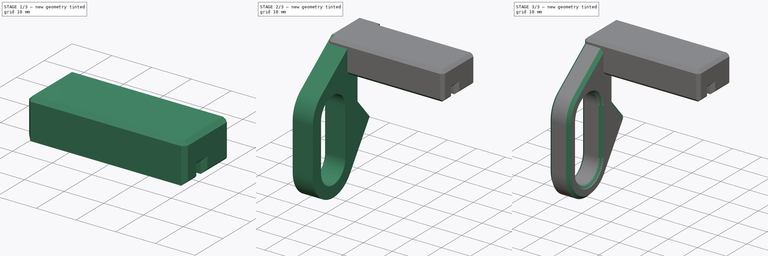
[diagram: build sequence overview — one tinted view per stage of 3, left to right]
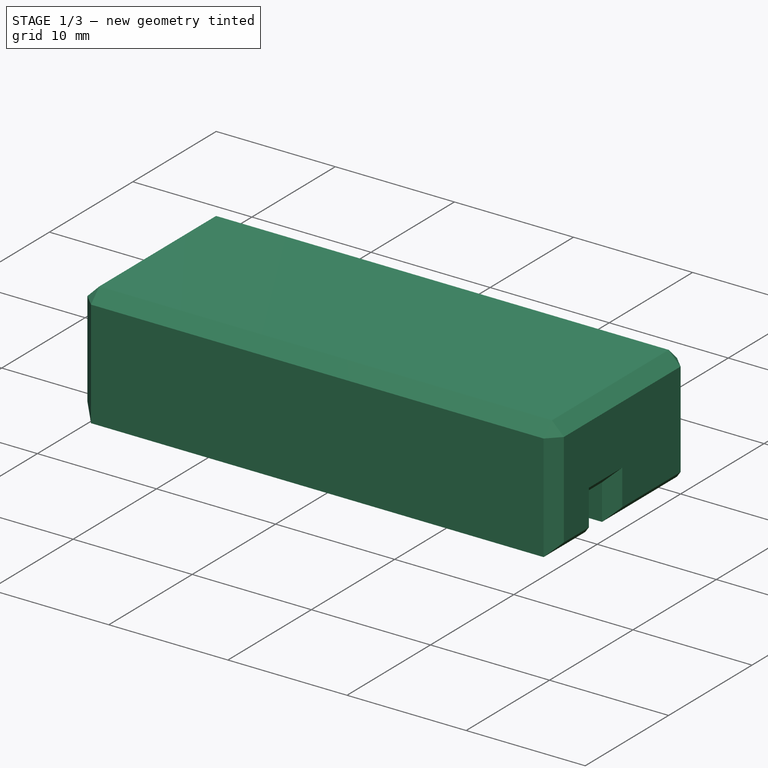
[diagram: stage 1 of 3 — iso view after this stage's code; geometry added in this stage tinted green]
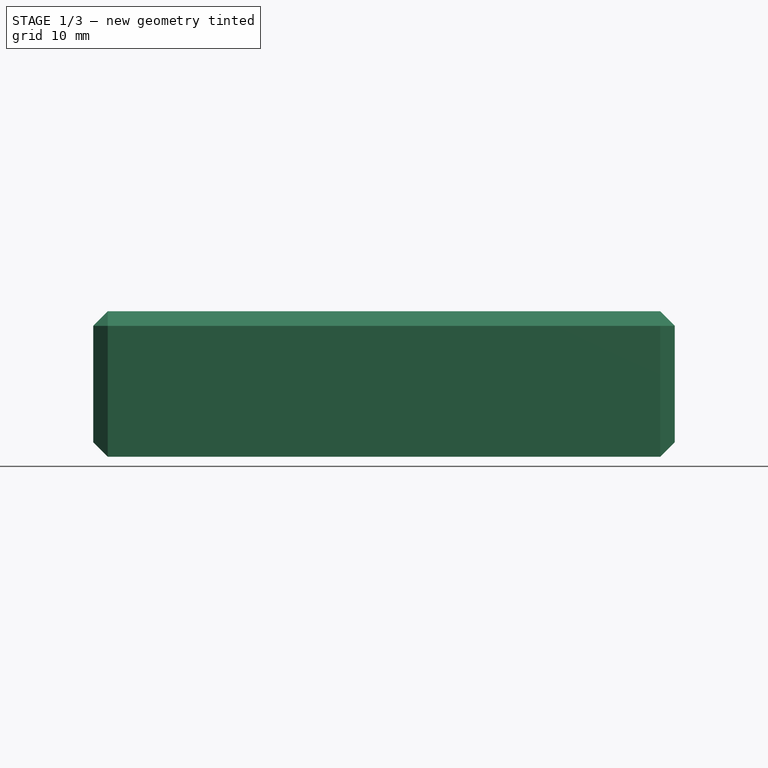
[diagram: stage 1 of 3 — front view after this stage's code; geometry added in this stage tinted green]
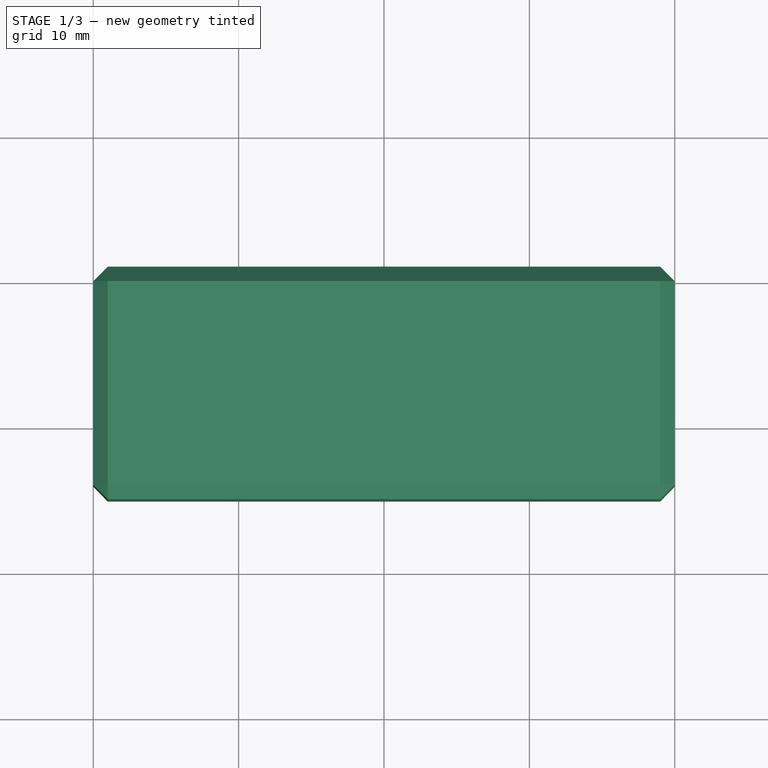
[diagram: stage 1 of 3 — top view after this stage's code; geometry added in this stage tinted green]
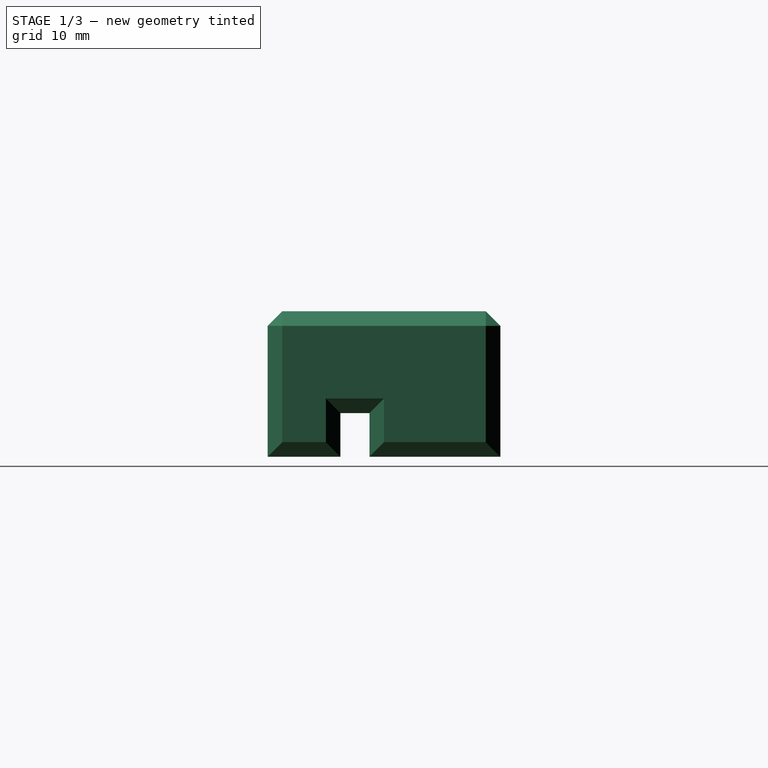
[diagram: stage 1 of 3 — right view after this stage's code; geometry added in this stage tinted green]
FCSTD DOCUMENT  (FreeCAD 0.20R)
Label: sensor_holder
License: All rights reserved
LicenseURL: http://en.wikipedia.org/wiki/All_rights_reserved
objects: PartDesign::Chamfer×3, Sketcher::SketchObject×2, PartDesign::Pad×2, PartDesign::Body×2, Part::FeaturePython×1
note: 15 computed .brp shape members not serialized (recipe doc carries the construction recipe); baked Part::Feature solids carry a one-line shape summary decoded from their .brp

FEATURE [Sketcher::SketchObject] Sketch005
  FullyConstrained = false
  MapMode = 5
  Placement = pos=(0,0,0) rot=(0.57735,0.57735,0.57735;2.0944rad)
  sketch-geometry (9):
    g0: LineSegment StartX=2 StartY=-5 StartZ=0 EndX=11 EndY=-5 EndZ=0
    g1: LineSegment StartX=11 StartY=-5 StartZ=0 EndX=11 EndY=5 EndZ=0
    g2: LineSegment StartX=2 StartY=-2 StartZ=0 EndX=2 EndY=-5 EndZ=0
    g3: LineSegment StartX=0 StartY=-2 StartZ=0 EndX=2 EndY=-2 EndZ=0
    g4: LineSegment StartX=-5 StartY=5 StartZ=0 EndX=11 EndY=5 EndZ=0
    g5: LineSegment StartX=-5 StartY=5 StartZ=0 EndX=-5 EndY=-2 EndZ=0
    g6: LineSegment StartX=-5 StartY=-2 StartZ=0 EndX=-5 EndY=-5 EndZ=0
    g7: LineSegment StartX=-5 StartY=-5 StartZ=0 EndX=0 EndY=-5 EndZ=0
    g8: LineSegment StartX=0 StartY=-5 StartZ=0 EndX=0 EndY=-2 EndZ=0
  constraints (26):
    c: Coincident(g0,g1)
    c: Coincident(g2,g0)
    c: Horizontal(g0)
    c: Vertical(g1)
    c: Vertical(g2)
    c: Horizontal(g3)
    c: Coincident(g2,g3)
    c: DistanceX(g3,g2) = 2
    c: DistanceY(g2,g2) = 3
    c: DistanceY(g1,g1) = 10
    c: Coincident(g4,g1)
    c: Horizontal(g4)
    c: DistanceX(g3,g0) = 11
    c: DistanceY(g-1,g4) = 5
    c: DistanceX(g-1,g3) = 0
    c: Coincident(g5,g4)
    c: DistanceX(g4) = -5
    c: Perpendicular(g4,g5)
    c: Coincident(g6,g5)
    c: Coincident(g7,g6)
    c: Coincident(g8,g7)
    c: Coincident(g8,g3)
    c: Perpendicular(g8,g3)
    c: Perpendicular(g8,g7)
    c: Perpendicular(g7,g6)
    c: DistanceY(g6,g-1) = 5
FEATURE [PartDesign::Pad] Pad
  Direction = (1,0,0)
  Length = 40
  Length2 = 10
  Placement = pos=(0,0,0) rot=(0.57735,0.57735,0.57735;2.0944rad)
  Profile = -> Sketch005
  ReferenceAxis = -> Sketch005 [N_Axis]
  Type = 0
FEATURE [PartDesign::Body] Body001
  Group = -> [Sketch003,Pad001,Chamfer]
  Origin = -> Origin001
  Tip = -> Chamfer
FEATURE [PartDesign::Chamfer] Chamfer001
  Angle = 45
  Base = -> Pad [Face11,Face10,Face4,Face3]
  BaseFeature = -> Pad
  ChamferType = 0
  FlipDirection = false
  Placement = pos=(0,0,0) rot=(0.57735,0.57735,0.57735;2.0944rad)
  Size = 1
  Size2 = 1
  SupportTransform = false
  UseAllEdges = false
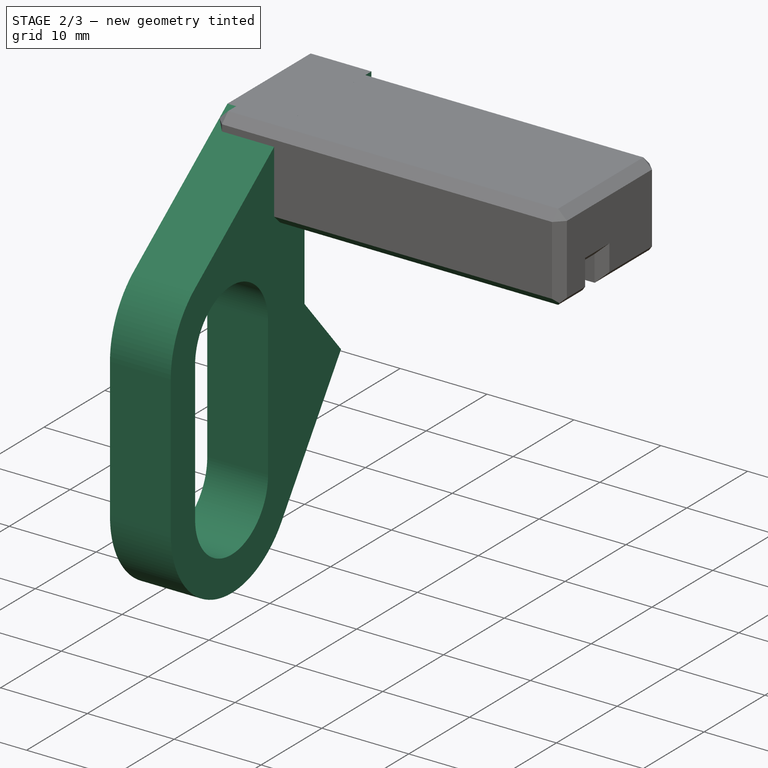
[diagram: stage 2 of 3 — iso view after this stage's code; geometry added in this stage tinted green]
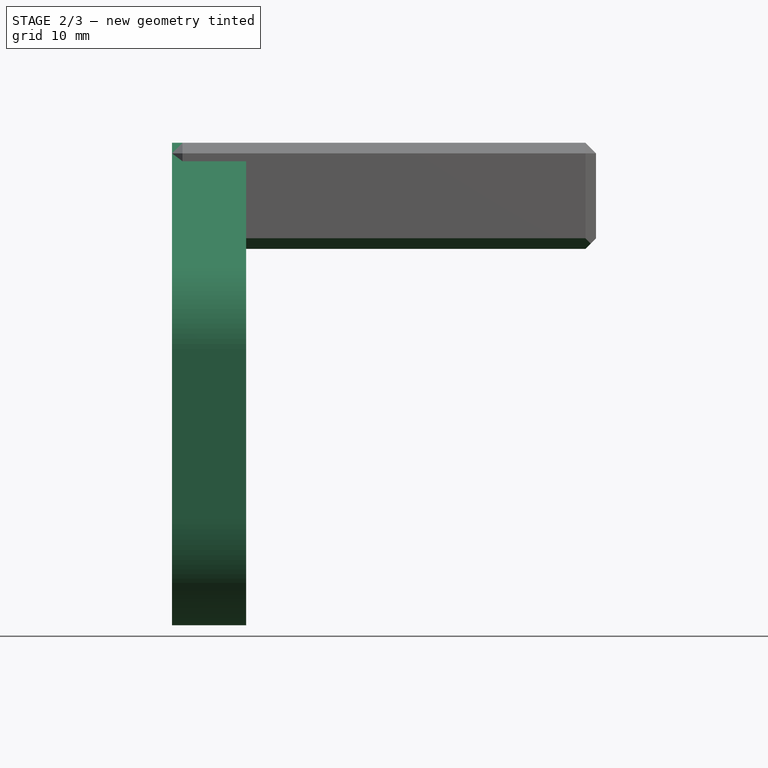
[diagram: stage 2 of 3 — front view after this stage's code; geometry added in this stage tinted green]
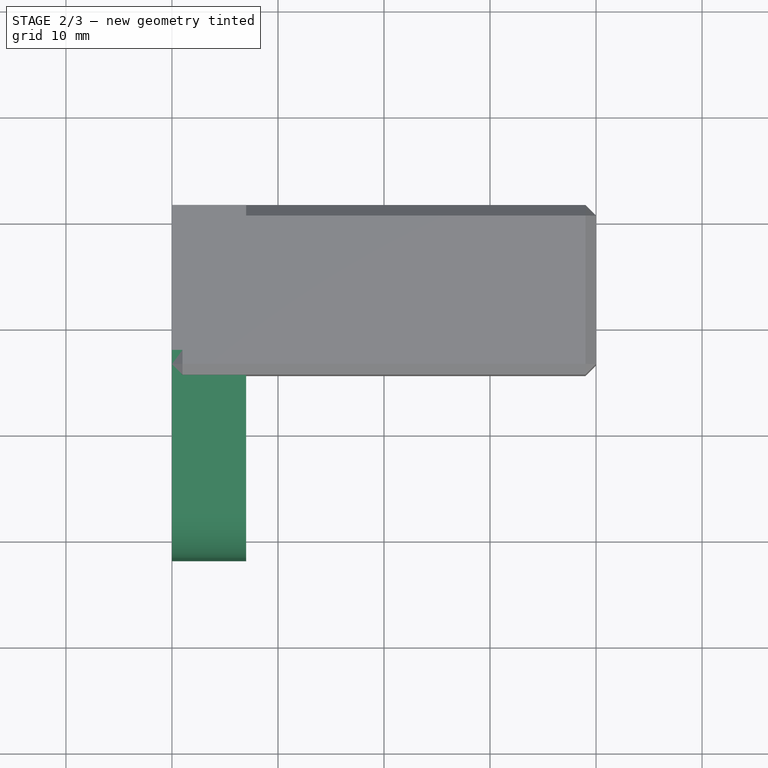
[diagram: stage 2 of 3 — top view after this stage's code; geometry added in this stage tinted green]
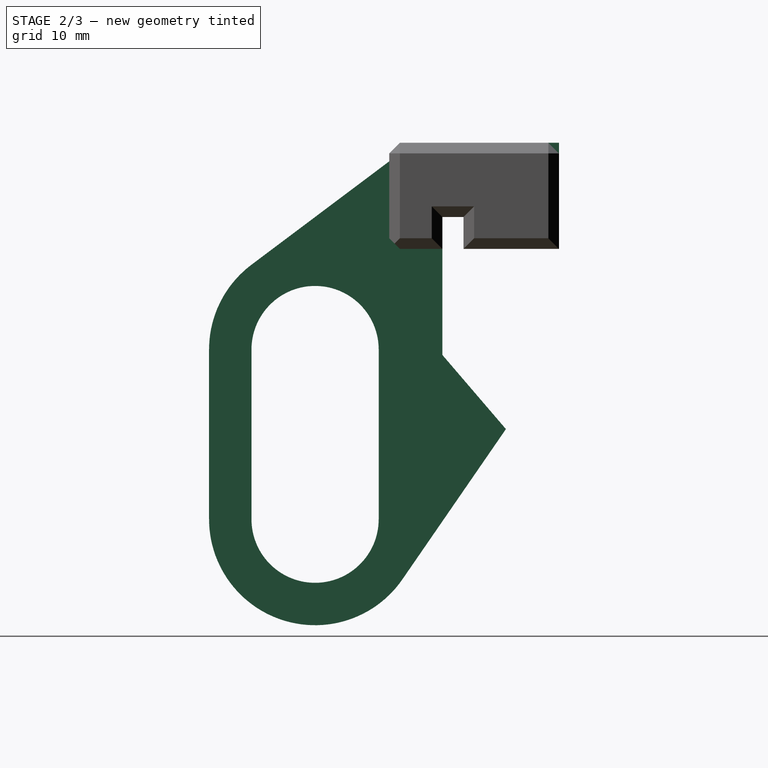
[diagram: stage 2 of 3 — right view after this stage's code; geometry added in this stage tinted green]
FEATURE [Sketcher::SketchObject] Sketch003
  FullyConstrained = false
  MapMode = 5
  Placement = pos=(0,0,0) rot=(0.57735,0.57735,0.57735;2.0944rad)
  Support = -> [YZ_Plane001]
  sketch-geometry (18):
    g0: LineSegment StartX=2 StartY=-5 StartZ=0 EndX=11 EndY=-5 EndZ=0
    g1: LineSegment StartX=11 StartY=-5 StartZ=0 EndX=11 EndY=5 EndZ=0
    g2: LineSegment StartX=2 StartY=-2 StartZ=0 EndX=2 EndY=-5 EndZ=0
    g3: LineSegment StartX=0 StartY=-2 StartZ=0 EndX=2 EndY=-2 EndZ=0
    g4: LineSegment StartX=0 StartY=-2 StartZ=0 EndX=0 EndY=-15 EndZ=0
    g5: LineSegment StartX=-2.67757 StartY=5 StartZ=0 EndX=11 EndY=5 EndZ=0
    g6: LineSegment StartX=6 StartY=-22 StartZ=0 EndX=0 EndY=-15 EndZ=0
    g7: LineSegment StartX=-6 StartY=-14.5 StartZ=0 EndX=-6 EndY=-30.5 EndZ=0
    g8: LineSegment StartX=-18 StartY=-30.5 StartZ=0 EndX=-18 EndY=-14.5 EndZ=0
    g9: ArcOfCircle CenterX=-12 CenterY=-30.5 CenterZ=0 NormalX=0 NormalY=0 NormalZ=1 AngleXU=0 Radius=10 StartAngle=3.1378 EndAngle=5.67989
    g10: LineSegment StartX=6 StartY=-22 StartZ=0 EndX=-3.76527 EndY=-36.1736 EndZ=0
    g11: GeomPoint X=-12 Y=-14.5 Z=0
    g12: GeomPoint X=-12 Y=-30.5 Z=0
    g13: ArcOfCircle CenterX=-12 CenterY=-14.5 CenterZ=0 NormalX=0 NormalY=0 NormalZ=1 AngleXU=0 Radius=6 StartAngle=1e-16 EndAngle=3.14159
    g14: ArcOfCircle CenterX=-12 CenterY=-30.5 CenterZ=0 NormalX=0 NormalY=0 NormalZ=1 AngleXU=0 Radius=6 StartAngle=3.14159 EndAngle=6.28318
    g15: LineSegment StartX=-21.9999 StartY=-30.4621 StartZ=0 EndX=-21.9999 EndY=-14.4621 EndZ=0
    g16: ArcOfCircle CenterX=-12 CenterY=-14.5 CenterZ=0 NormalX=0 NormalY=0 NormalZ=1 AngleXU=0 Radius=10 StartAngle=2.21464 EndAngle=3.1378
    g17: LineSegment StartX=-18.0027 StartY=-6.50205 StartZ=0 EndX=-2.67757 EndY=5 EndZ=0
  constraints (43):
    c: DistanceX(g3) = 0
    c: DistanceY(g3) = -2
    c: DistanceX(g2) = 2
    c: DistanceY(g2) = -2
    c: DistanceX(g0) = 2
    c: DistanceY(g0) = -5
    c: DistanceX(g0) = 11
    c: DistanceY(g0) = -5
    c: DistanceX(g1) = 11
    c: DistanceY(g1) = 5
    c: DistanceX(g4) = 0
    c: DistanceY(g4) = -15
    c: DistanceX(g6) = 6
    c: DistanceY(g6) = -22
    c: DistanceY(g8,g11) = 0
    c: DistanceY(g7,g8) = 0
    c: Coincident(g13,g11)
    c: Coincident(g13,g8)
    c: Coincident(g13,g7)
    c: Coincident(g14,g9)
    c: Coincident(g14,g8)
    c: Coincident(g14,g7)
    c: Radius(g14) = 6
    c: Radius(g13) = 6
    c: DistanceY(g9,g13) = 16
    c: Coincident(g9,g12)
    c: DistanceX(g8,g8) = 0
    c: DistanceX(g7,g7) = 0
    c: Radius(g9) = 10
    c: Coincident(g15,g9)
    c: Vertical(g15)
    c: Parallel(g5,g3)
    c: DistanceY(g1,g5) = 0
    c: Coincident(g16,g13)
    c: Radius(g16) = 10
    c: Coincident(g17,g5)
    c: Coincident(g15,g16)
    c: Coincident(g4,g6)
    c: DistanceX(g13,g4) = 12
    c: Tangent(g9,g10) = 1.5708
    c: Tangent(g17,g16) = 1.5708
    c: Coincident(g6,g10)
    c: DistanceY(g13,g3) = 12.5
FEATURE [PartDesign::Pad] Pad001
  Direction = (1,-2e-16,3e-16)
  Length = 7
  Length2 = 10
  Placement = pos=(0,0,0) rot=(0.57735,0.57735,0.57735;2.0944rad)
  Profile = -> Sketch003
  ReferenceAxis = -> Sketch003 [N_Axis]
  Type = 0
FEATURE [PartDesign::Chamfer] Chamfer002
  Angle = 45
  Base = -> Chamfer001 [Edge69]
  BaseFeature = -> Chamfer001
  ChamferType = 0
  FlipDirection = false
  Placement = pos=(0,0,0) rot=(0.57735,0.57735,0.57735;2.0944rad)
  Size = 1
  Size2 = 1
  SupportTransform = false
  UseAllEdges = false
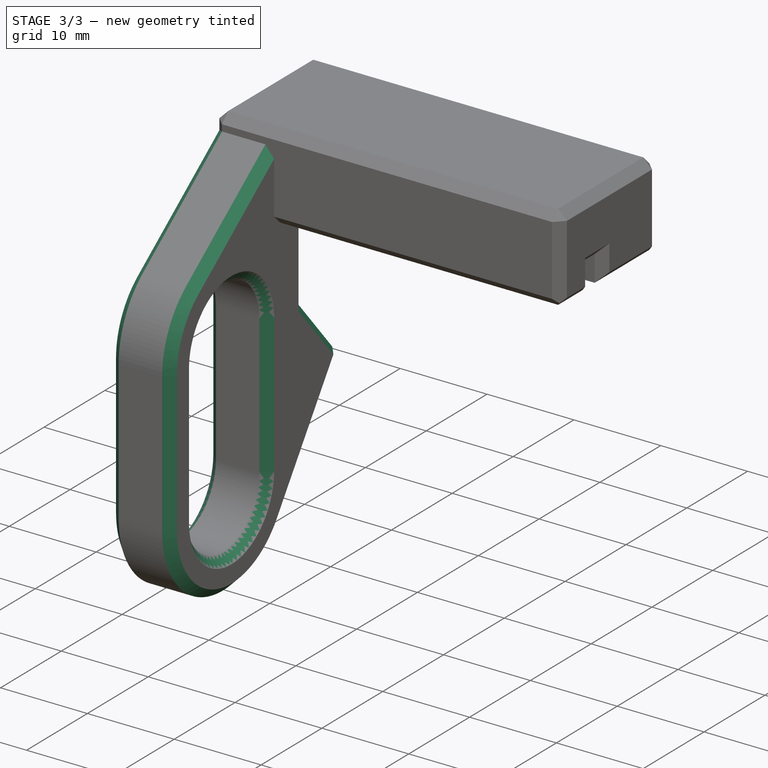
[diagram: stage 3 of 3 — iso view after this stage's code; geometry added in this stage tinted green]
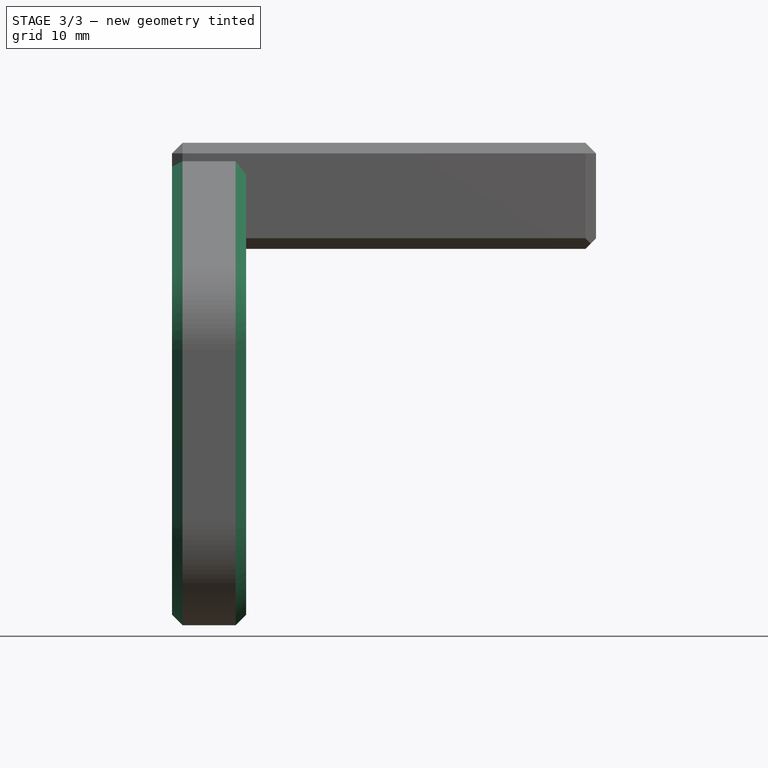
[diagram: stage 3 of 3 — front view after this stage's code; geometry added in this stage tinted green]
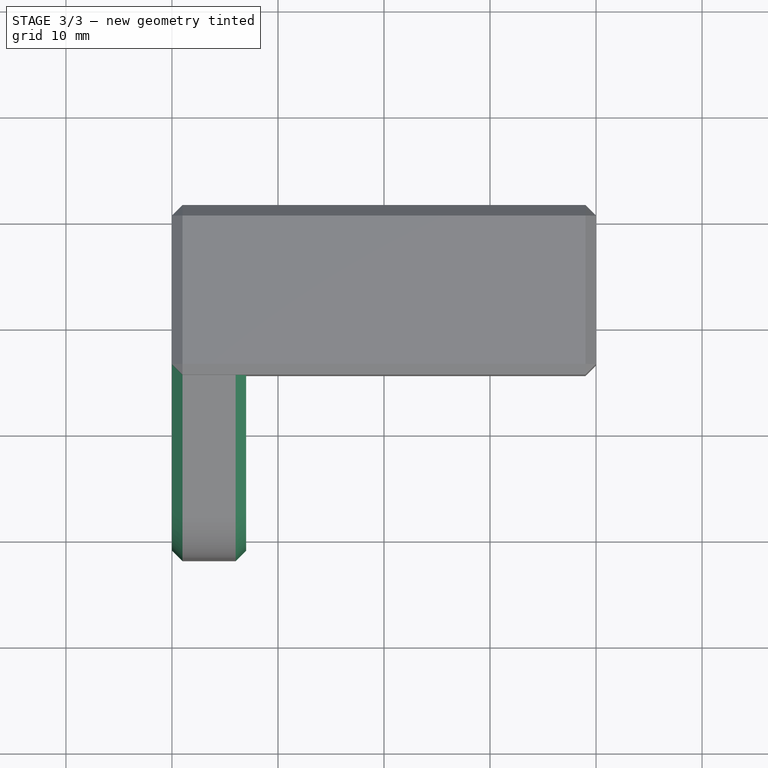
[diagram: stage 3 of 3 — top view after this stage's code; geometry added in this stage tinted green]
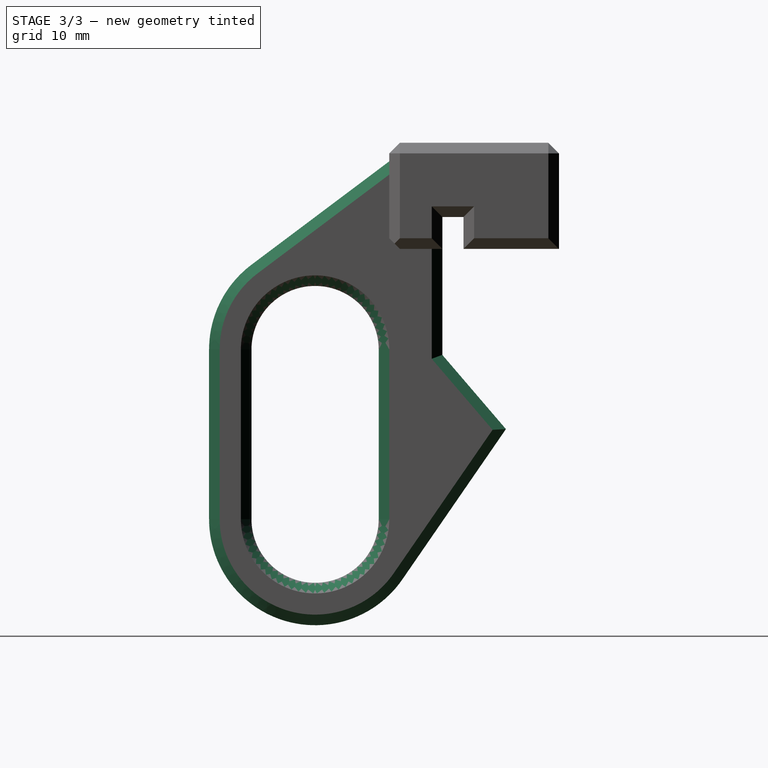
[diagram: stage 3 of 3 — right view after this stage's code; geometry added in this stage tinted green]
FEATURE [PartDesign::Chamfer] Chamfer
  Angle = 45
  Base = -> Pad001 [Face18,Face17,Face9]
  BaseFeature = -> Pad001
  ChamferType = 0
  FlipDirection = false
  Placement = pos=(0,0,0) rot=(0.57735,0.57735,0.57735;2.0944rad)
  Size = 1
  Size2 = 1
  SupportTransform = false
  UseAllEdges = false
FEATURE [PartDesign::Body] Body
  Group = -> [Sketch005,Pad,Chamfer001,Chamfer002]
  Origin = -> Origin
  Tip = -> Chamfer002
FEATURE [Part::FeaturePython] Embed  # WARN: FeaturePython — macro-defined, semantics opaque (R4)
  Base = -> Body001
  Tolerance = 0
  Tool = -> Body
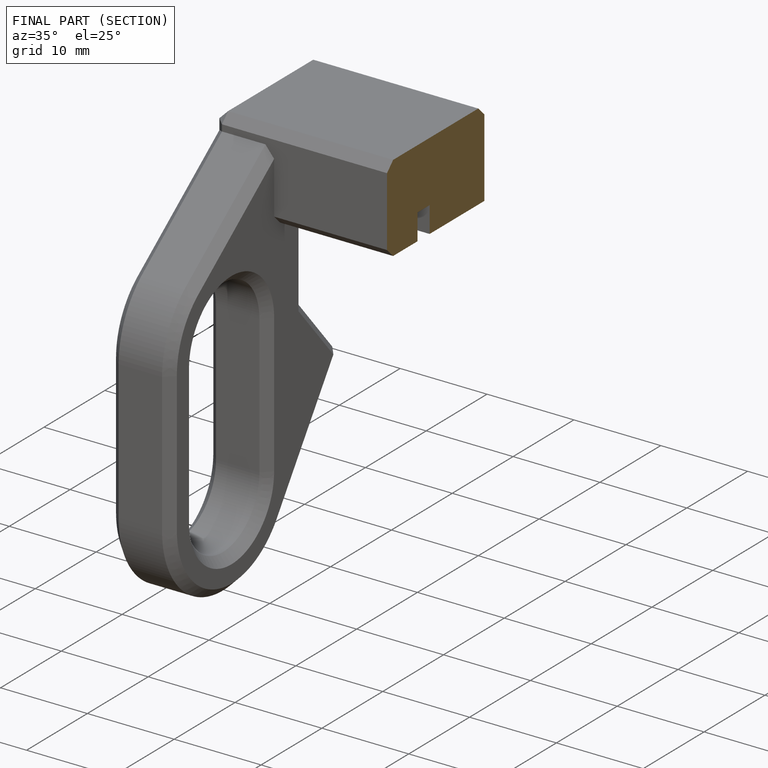
[diagram: finished part — half-section view (interior)]
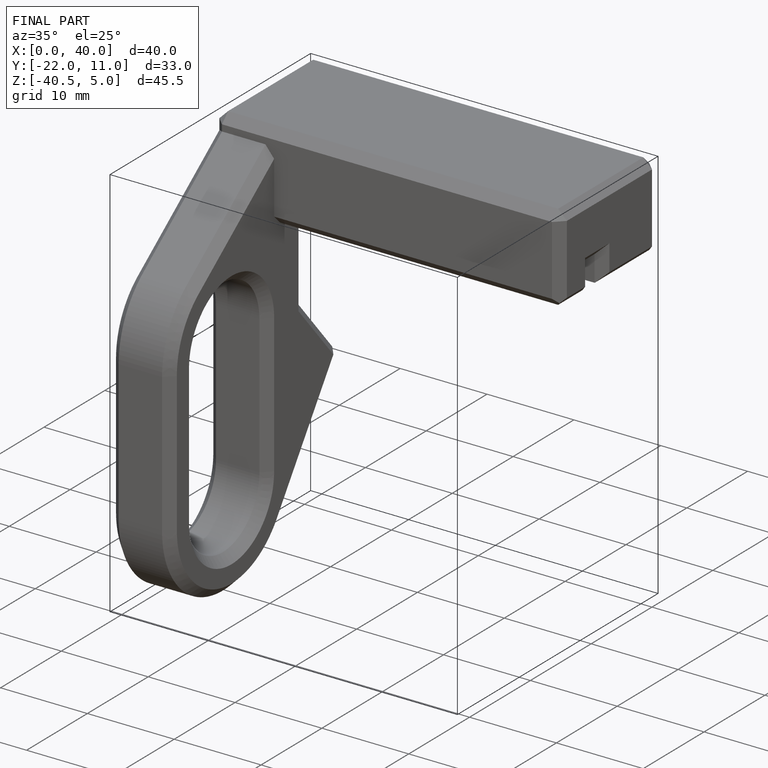
[diagram: finished part — iso view with bounding-box wireframe]
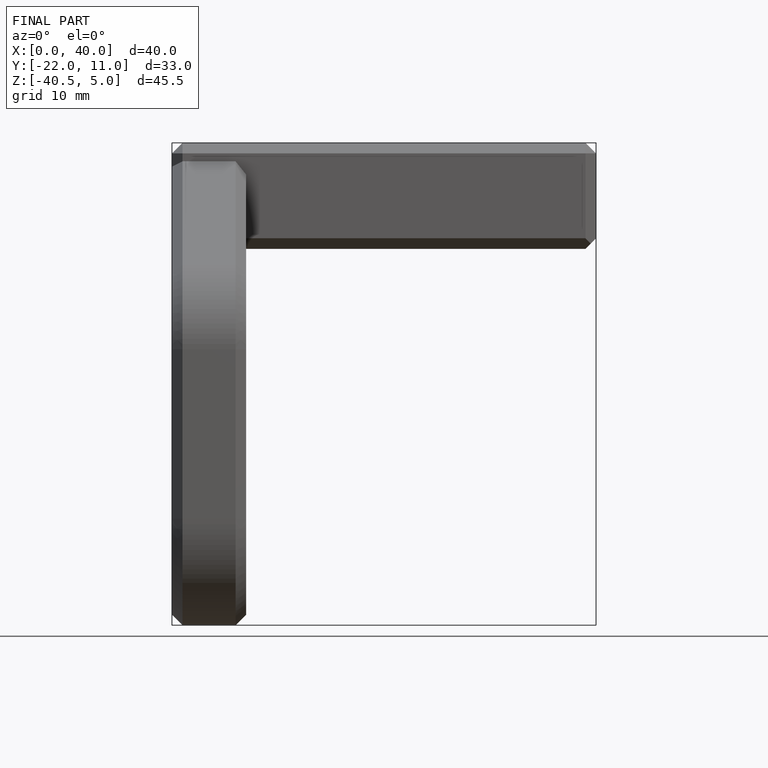
[diagram: finished part — front view with bounding-box wireframe]
